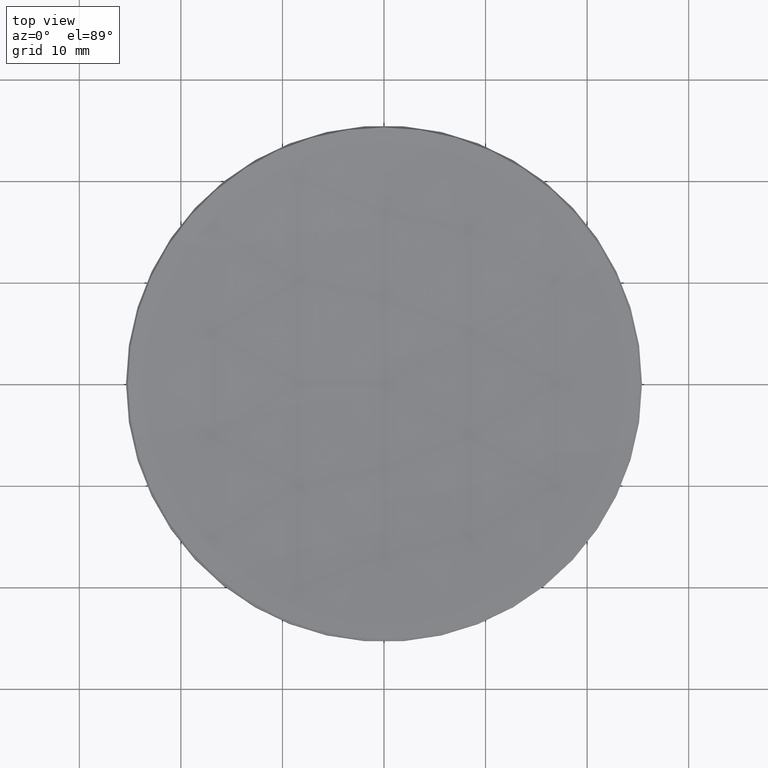
[diagram: clean part render]
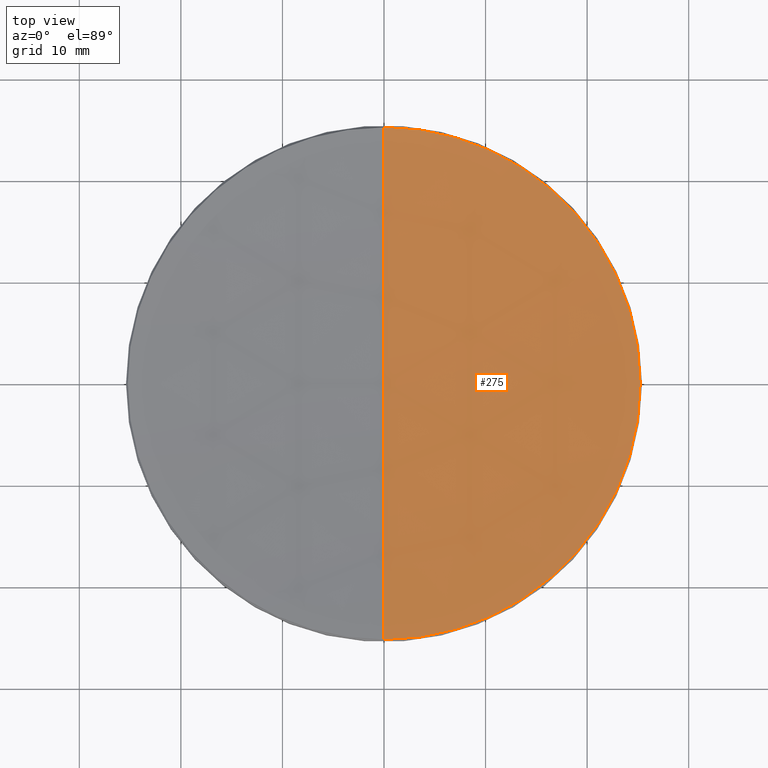
[diagram: same view with one face highlighted and labeled with its STEP entity id]
A machine part, top view. The second image highlights one B-rep face of the part: STEP entity #275.
In plain terms, the highlighted spherical surface has radius 279.12 mm.
Its self-contained STEP definition (entity closure, byte-faithful):
#14 = AXIS2_PLACEMENT_3D ( 'NONE', #269, #101, #283 ) ;
#17 = EDGE_CURVE ( 'NONE', #320, #249, #187, .T. ) ;
#37 = CARTESIAN_POINT ( 'NONE',  ( 25.21668983323140623, 3.099378359385061019E-15, 15.98331016676862681 ) ) ;
#41 = VERTEX_POINT ( 'NONE', #85 ) ;
#42 = CIRCLE ( 'NONE', #164, 279.1200000000000614 ) ;
#76 = CARTESIAN_POINT ( 'NONE',  ( 0.000000000000000000, 0.000000000000000000, 293.9618937912173351 ) ) ;
#85 = CARTESIAN_POINT ( 'NONE',  ( -3.088153848935836496E-15, -25.21668983323133872, 15.98331016676862681 ) ) ;
#89 = DIRECTION ( 'NONE',  ( -1.224646799147352961E-16, -1.000000000000000000, 0.000000000000000000 ) ) ;
#90 = CARTESIAN_POINT ( 'NONE',  ( 0.000000000000000000, 0.000000000000000000, 15.98331016676862681 ) ) ;
#96 = DIRECTION ( 'NONE',  ( -0.000000000000000000, -0.000000000000000000, 1.000000000000000000 ) ) ;
#99 = CARTESIAN_POINT ( 'NONE',  ( 0.000000000000000000, 25.21668983323133872, 15.98331016676862681 ) ) ;
#101 = DIRECTION ( 'NONE',  ( -0.000000000000000000, -0.000000000000000000, 1.000000000000000000 ) ) ;
#105 = EDGE_CURVE ( 'NONE', #231, #41, #233, .T. ) ;
#114 = CARTESIAN_POINT ( 'NONE',  ( 0.000000000000000000, 0.000000000000000000, 293.9618937912173351 ) ) ;
#120 = SPHERICAL_SURFACE ( 'NONE', #142, 279.1200000000000614 ) ;
#128 = ORIENTED_EDGE ( 'NONE', *, *, #313, .T. ) ;
#142 = AXIS2_PLACEMENT_3D ( 'NONE', #305, #299, #221 ) ;
#146 = ORIENTED_EDGE ( 'NONE', *, *, #17, .T. ) ;
#147 = CIRCLE ( 'NONE', #227, 25.21668983323140623 ) ;
#151 = EDGE_CURVE ( 'NONE', #231, #249, #42, .T. ) ;
#164 = AXIS2_PLACEMENT_3D ( 'NONE', #76, #193, #190 ) ;
#180 = AXIS2_PLACEMENT_3D ( 'NONE', #114, #325, #89 ) ;
#187 = CIRCLE ( 'NONE', #14, 25.21668983323140623 ) ;
#190 = DIRECTION ( 'NONE',  ( 0.000000000000000000, 0.000000000000000000, -1.000000000000000000 ) ) ;
#193 = DIRECTION ( 'NONE',  ( 1.000000000000000000, 0.000000000000000000, 0.000000000000000000 ) ) ;
#199 = DIRECTION ( 'NONE',  ( 1.000000000000000000, 0.000000000000000000, 0.000000000000000000 ) ) ;
#212 = EDGE_LOOP ( 'NONE', ( #322, #311, #128, #146 ) ) ;
#221 = DIRECTION ( 'NONE',  ( 0.000000000000000000, 1.000000000000000000, 0.000000000000000000 ) ) ;
#227 = AXIS2_PLACEMENT_3D ( 'NONE', #90, #96, #199 ) ;
#231 = VERTEX_POINT ( 'NONE', #304 ) ;
#233 = CIRCLE ( 'NONE', #180, 279.1200000000000614 ) ;
#249 = VERTEX_POINT ( 'NONE', #99 ) ;
#250 = FACE_OUTER_BOUND ( 'NONE', #212, .T. ) ;
#269 = CARTESIAN_POINT ( 'NONE',  ( 0.000000000000000000, 0.000000000000000000, 15.98331016676862681 ) ) ;
#275 = ADVANCED_FACE ( 'NONE', ( #250 ), #120, .F. ) ;
#283 = DIRECTION ( 'NONE',  ( 1.000000000000000000, 0.000000000000000000, 0.000000000000000000 ) ) ;
#299 = DIRECTION ( 'NONE',  ( -1.000000000000000000, 0.000000000000000000, 0.000000000000000000 ) ) ;
#304 = CARTESIAN_POINT ( 'NONE',  ( 0.000000000000000000, 1.709117072890046227E-14, 14.84189379121730923 ) ) ;
#305 = CARTESIAN_POINT ( 'NONE',  ( 0.000000000000000000, 0.000000000000000000, 293.9618937912173351 ) ) ;
#311 = ORIENTED_EDGE ( 'NONE', *, *, #105, .T. ) ;
#313 = EDGE_CURVE ( 'NONE', #41, #320, #147, .T. ) ;
#320 = VERTEX_POINT ( 'NONE', #37 ) ;
#322 = ORIENTED_EDGE ( 'NONE', *, *, #151, .F. ) ;
#325 = DIRECTION ( 'NONE',  ( -1.000000000000000000, 1.224646799147353207E-16, 0.000000000000000000 ) ) ;